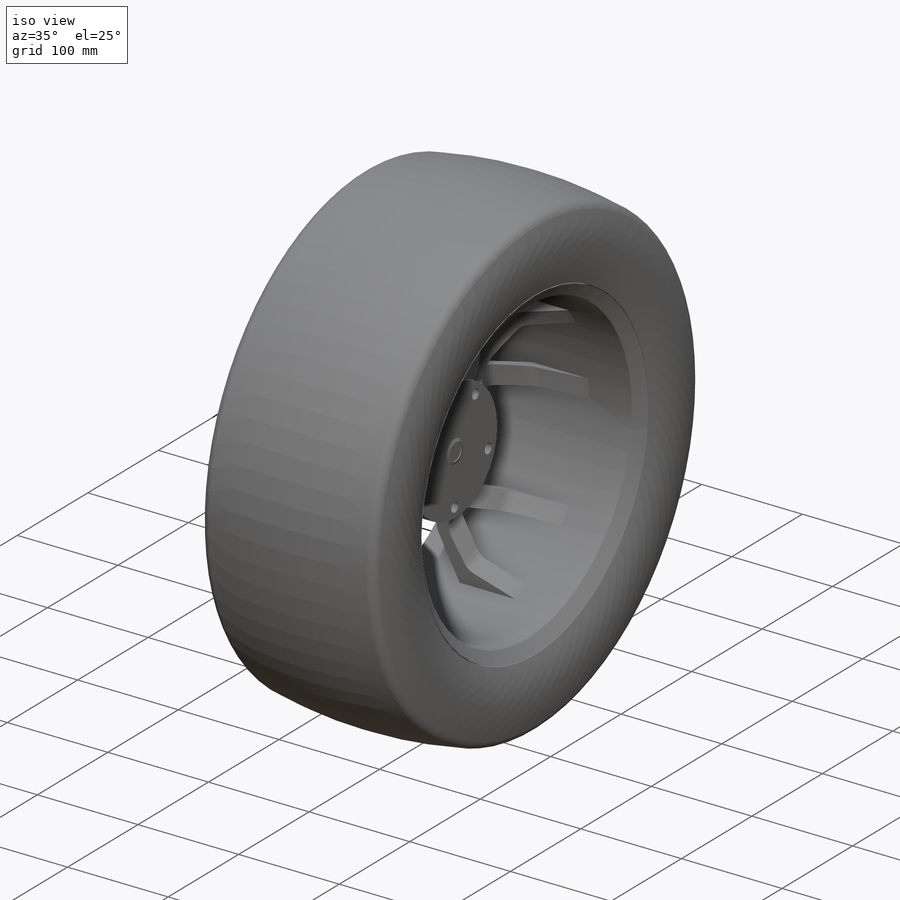
[diagram: iso view]
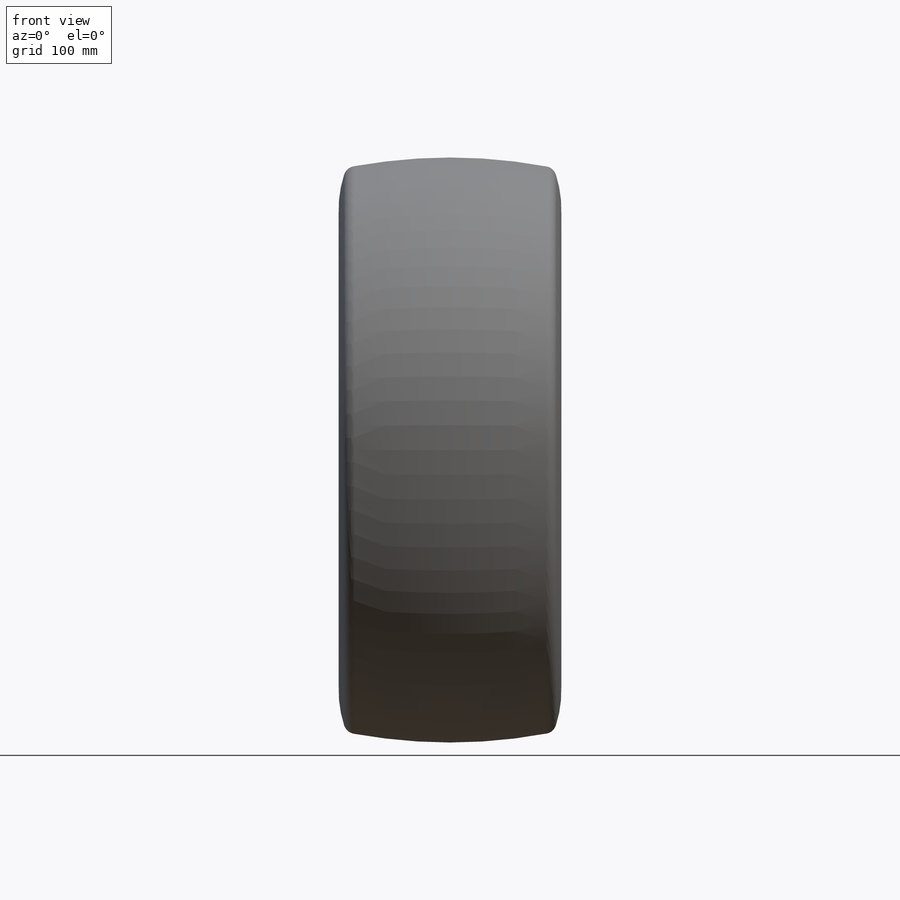
[diagram: front view]
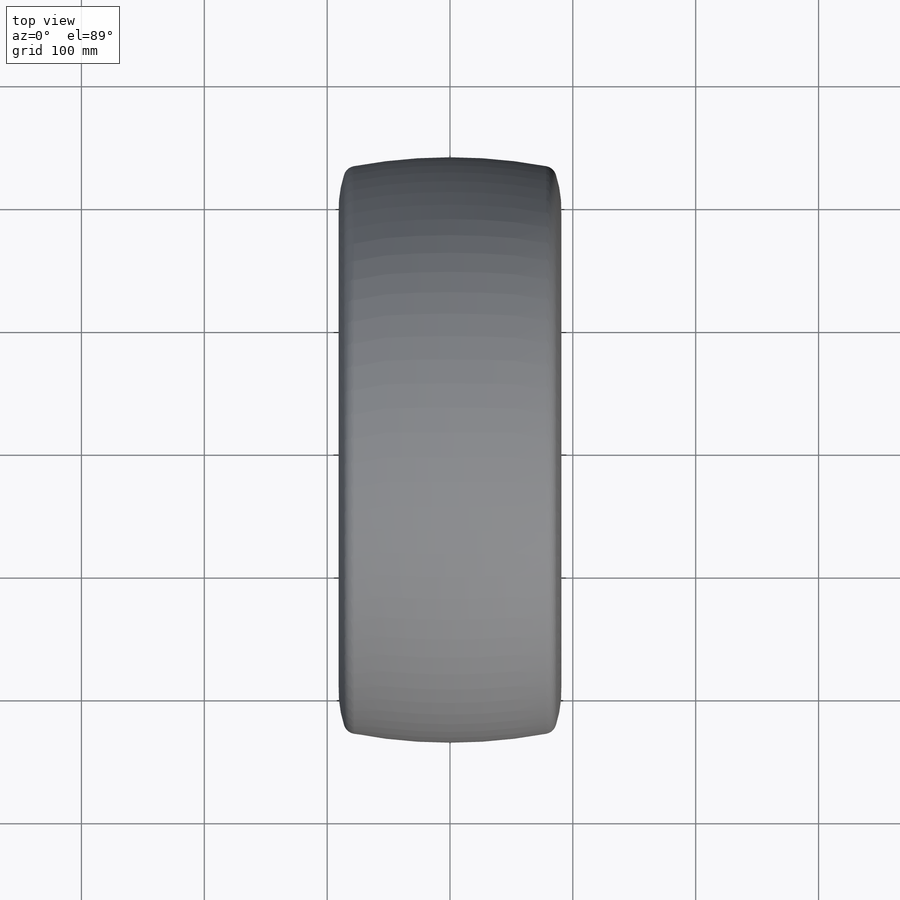
[diagram: top view]
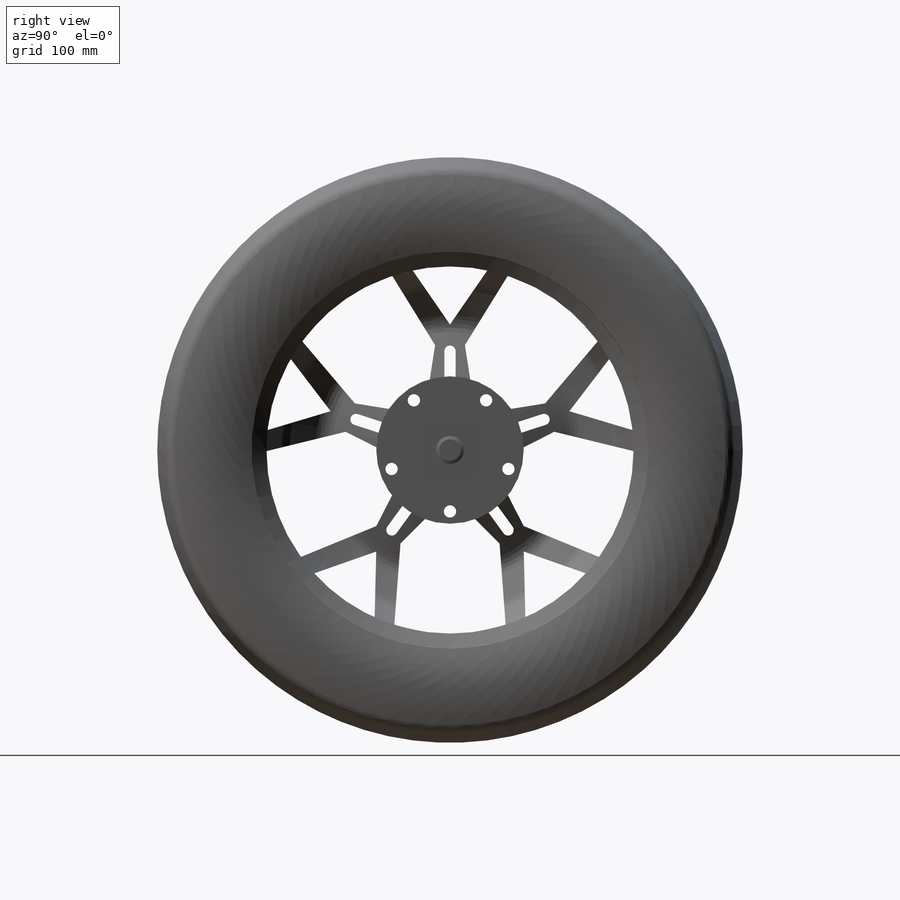
[diagram: right view]
SOLIDWORKS PART (.sldprt)
format: sldprt  version: not decoded by parser v0  size: 775,168 bytes
history: native  units: mm
features: sketch x6, cut_extrude x3, pattern_circular x3, revolve x2, material x1, plane x1, extrude x1 (+11 scaffold rows collapsed)
feature tree (28):
  scaffold x11  (default folders/planes/origin — collapsed)
  material  "Material <not specified>"
  sketch  "Sketch1"  dims[D1=76.2mm]
  revolve  "Revolve2"  Angle=360deg
  plane  "Plane2"
  sketch  "Sketch2"
  cut_extrude  "Cut-Extrude1"  Depth=360.68mm
  pattern_circular  "CirPattern1"  Count=5 Angle=360deg
  sketch  "Sketch3"
  cut_extrude  "Cut-Extrude2"  Depth=158.75mm
  pattern_circular  "CirPattern2"  Count=5 Angle=360deg
  sketch  "Sketch4"  dims[D1=~56.32018mm]
  extrude  "Boss-Extrude1"  Depth=12.7mm
  sketch  "Sketch5"  dims[D1=50.0mm]
  cut_extrude  "Cut-Extrude3"  Depth=66.802mm
  pattern_circular  "CirPattern3"  Count=5 Angle=360deg
  sketch  "Sketch6"  dims[D1=10.16mm D2=10.16mm]
  revolve  "Revolve3"  Angle=360deg
decode coverage: 13 of 15 modeling features carry decoded parameters
note: ~ marks probable driven/reference dimensions
note: suppression state not decoded; provenance and decode notes live in map.json
